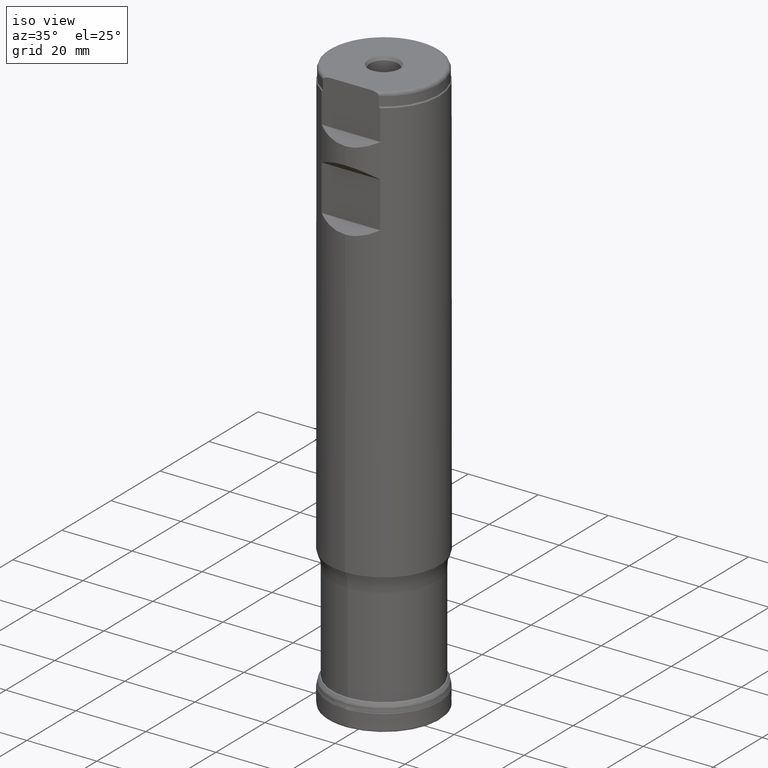
[diagram: clean part render]
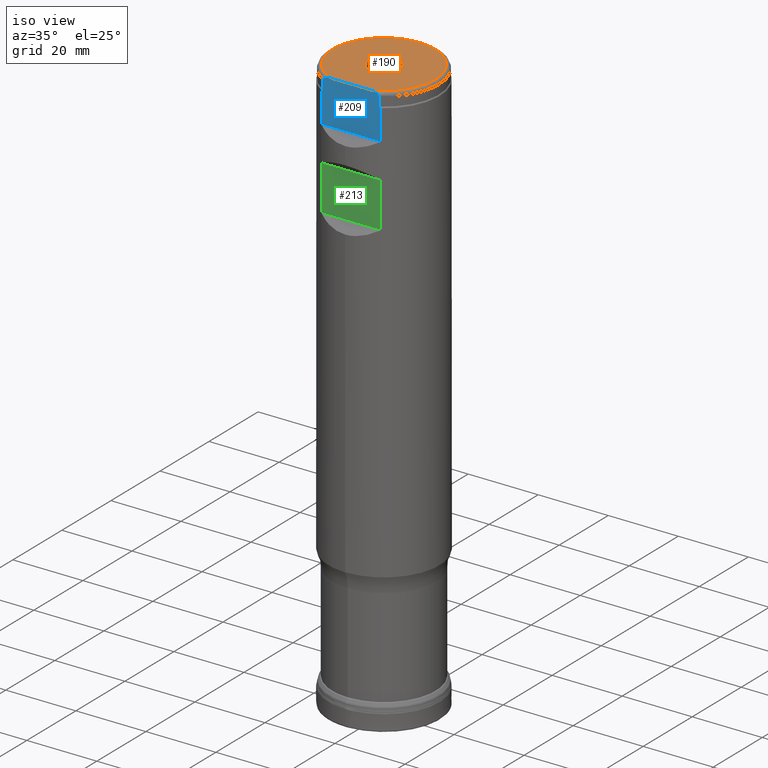
[diagram: same view with three faces highlighted in distinct colors, each labeled with its STEP entity id]
A machine part, iso view with three faces highlighted in distinct colors.
Their STEP definitions:

[orange] entity #190 — the highlighted planar face has unit normal (0, 0, 1).
#161=PLANE('',#823);
#190=ADVANCED_FACE('',(#291,#292),#161,.T.);
#250=CIRCLE('',#821,4.5);
#251=CIRCLE('',#822,14.675);
#291=FACE_BOUND('',#374,.T.);
#292=FACE_BOUND('',#375,.T.);
#374=EDGE_LOOP('',(#523));
#375=EDGE_LOOP('',(#524,#525));
#465=LINE('',#1402,#484);
#484=VECTOR('',#918,1.);
#523=ORIENTED_EDGE('',*,*,#717,.T.);
#524=ORIENTED_EDGE('',*,*,#718,.T.);
#525=ORIENTED_EDGE('',*,*,#719,.T.);
#655=VERTEX_POINT('',#1398);
#656=VERTEX_POINT('',#1400);
#657=VERTEX_POINT('',#1401);
#717=EDGE_CURVE('',#655,#655,#250,.T.);
#718=EDGE_CURVE('',#656,#657,#251,.T.);
#719=EDGE_CURVE('',#657,#656,#465,.T.);
#821=AXIS2_PLACEMENT_3D('',#1397,#914,#915);
#822=AXIS2_PLACEMENT_3D('',#1399,#916,#917);
#823=AXIS2_PLACEMENT_3D('',#1403,#919,#920);
#914=DIRECTION('',(0.,-1.17145536458252E-15,-1.));
#915=DIRECTION('',(0.,-1.,0.));
#916=DIRECTION('',(0.,1.17145536458252E-15,1.));
#917=DIRECTION('',(0.,-1.,1.8913509789185E-15));
#918=DIRECTION('',(1.,-1.37230767120917E-30,-1.17145536458252E-15));
#919=DIRECTION('',(0.,1.17145536458252E-15,1.));
#920=DIRECTION('',(0.,-1.,1.16573417585641E-15));
#1397=CARTESIAN_POINT('',(0.,1.93407280692575E-13,165.1));
#1398=CARTESIAN_POINT('',(0.,-4.49999999999981,165.1));
#1399=CARTESIAN_POINT('',(0.,1.93407280692575E-13,165.1));
#1400=CARTESIAN_POINT('',(5.78322282468843,-13.4873999999998,165.1));
#1401=CARTESIAN_POINT('',(-5.78322282468864,-13.4873999999998,165.1));
#1402=CARTESIAN_POINT('',(-17.5,-13.4873999999998,165.1));
#1403=CARTESIAN_POINT('',(0.,1.93407280692575E-13,165.1));

[blue] entity #209 — the highlighted planar face has unit normal (0, -1, 0).
#164=PLANE('',#857);
#179=FACE_OUTER_BOUND('',#409,.T.);
#209=ADVANCED_FACE('',(#179),#164,.T.);
#409=EDGE_LOOP('',(#562,#563,#564,#565,#566,#567,#568,#569,#570,#571));
#461=LINE('',#1357,#480);
#462=LINE('',#1361,#481);
#463=LINE('',#1394,#482);
#464=LINE('',#1395,#483);
#465=LINE('',#1402,#484);
#466=LINE('',#1470,#485);
#480=VECTOR('',#896,1.);
#481=VECTOR('',#899,1.);
#482=VECTOR('',#910,1.);
#483=VECTOR('',#911,1.);
#484=VECTOR('',#918,1.);
#485=VECTOR('',#987,1.);
#562=ORIENTED_EDGE('',*,*,#737,.T.);
#563=ORIENTED_EDGE('',*,*,#708,.F.);
#564=ORIENTED_EDGE('',*,*,#713,.F.);
#565=ORIENTED_EDGE('',*,*,#715,.F.);
#566=ORIENTED_EDGE('',*,*,#721,.F.);
#567=ORIENTED_EDGE('',*,*,#719,.F.);
#568=ORIENTED_EDGE('',*,*,#720,.F.);
#569=ORIENTED_EDGE('',*,*,#716,.F.);
#570=ORIENTED_EDGE('',*,*,#711,.F.);
#571=ORIENTED_EDGE('',*,*,#706,.F.);
#645=VERTEX_POINT('',#1355);
#647=VERTEX_POINT('',#1358);
#648=VERTEX_POINT('',#1360);
#649=VERTEX_POINT('',#1362);
#651=VERTEX_POINT('',#1383);
#652=VERTEX_POINT('',#1385);
#653=VERTEX_POINT('',#1392);
#654=VERTEX_POINT('',#1393);
#656=VERTEX_POINT('',#1400);
#657=VERTEX_POINT('',#1401);
#706=EDGE_CURVE('',#645,#647,#461,.T.);
#708=EDGE_CURVE('',#648,#649,#462,.T.);
#711=EDGE_CURVE('',#647,#651,#791,.T.);
#713=EDGE_CURVE('',#652,#648,#792,.T.);
#715=EDGE_CURVE('',#654,#652,#463,.T.);
#716=EDGE_CURVE('',#651,#653,#464,.T.);
#719=EDGE_CURVE('',#657,#656,#465,.T.);
#720=EDGE_CURVE('',#653,#657,#793,.T.);
#721=EDGE_CURVE('',#656,#654,#794,.T.);
#737=EDGE_CURVE('',#645,#649,#466,.T.);
#791=B_SPLINE_CURVE_WITH_KNOTS('',3,(#1379,#1380,#1381,#1382),
 .UNSPECIFIED.,.F.,.F.,(4,4),(0.,1.),.UNSPECIFIED.);
#792=B_SPLINE_CURVE_WITH_KNOTS('',3,(#1386,#1387,#1388,#1389),
 .UNSPECIFIED.,.F.,.F.,(4,4),(0.,1.),.UNSPECIFIED.);
#793=B_SPLINE_CURVE_WITH_KNOTS('',3,(#1404,#1405,#1406,#1407,#1408,#1409,
#1410,#1411),.UNSPECIFIED.,.F.,.F.,(4,2,2,4),(0.,0.249999999999999,0.499999999999999,
1.),.UNSPECIFIED.);
#794=B_SPLINE_CURVE_WITH_KNOTS('',3,(#1412,#1413,#1414,#1415,#1416,#1417,
#1418,#1419),.UNSPECIFIED.,.F.,.F.,(4,2,2,4),(0.,0.5,0.75,1.),
 .UNSPECIFIED.);
#857=AXIS2_PLACEMENT_3D('',#1471,#988,#989);
#896=DIRECTION('',(0.,1.17145536458252E-15,1.));
#899=DIRECTION('',(0.,-1.17145536458252E-15,-1.));
#910=DIRECTION('',(0.,-1.17145536458252E-15,-1.));
#911=DIRECTION('',(0.,1.17145536458252E-15,1.));
#918=DIRECTION('',(1.,-1.37230767120917E-30,-1.17145536458252E-15));
#987=DIRECTION('',(1.,-1.37230767120917E-30,-1.17145536458252E-15));
#988=DIRECTION('',(0.,-1.,1.17145536458252E-15));
#989=DIRECTION('',(1.17267306976032E-15,1.17093834628434E-15,1.));
#1355=CARTESIAN_POINT('',(-8.37291264972948,-13.4873999999998,152.524264068712));
#1357=CARTESIAN_POINT('',(-8.37291264972948,-13.4874,1.57998870842703E-14));
#1358=CARTESIAN_POINT('',(-8.37291264972948,-13.4873999999998,161.1));
#1360=CARTESIAN_POINT('',(8.37291264972948,-13.4873999999998,161.1));
#1361=CARTESIAN_POINT('',(8.37291264972948,-13.4874,1.57998870842703E-14));
#1362=CARTESIAN_POINT('',(8.37291264972948,-13.4873999999998,152.524264068712));
#1379=CARTESIAN_POINT('',(-8.37291264972947,-13.4873999999998,161.1));
#1380=CARTESIAN_POINT('',(-8.24537216173961,-13.4873999999998,161.216512233654));
#1381=CARTESIAN_POINT('',(-8.11683755434122,-13.4873999999998,161.332012782716));
#1382=CARTESIAN_POINT('',(-7.98721893026601,-13.4873999999998,161.446410161514));
#1383=CARTESIAN_POINT('',(-7.98721893026602,-13.4873999999998,161.446410161514));
#1385=CARTESIAN_POINT('',(7.98721893026602,-13.4873999999998,161.446410161514));
#1386=CARTESIAN_POINT('',(7.98721893026603,-13.4873999999998,161.446410161514));
#1387=CARTESIAN_POINT('',(8.11685003072467,-13.4873999999998,161.332001771447));
#1388=CARTESIAN_POINT('',(8.24538408682384,-13.4873999999998,161.216501339716));
#1389=CARTESIAN_POINT('',(8.37291264972948,-13.4873999999998,161.1));
#1392=CARTESIAN_POINT('',(-7.9872189302887,-13.4873999999998,164.099999999989));
#1393=CARTESIAN_POINT('',(7.98721893026602,-13.4873999999998,164.1));
#1394=CARTESIAN_POINT('',(7.98721893026602,-13.4874,1.57998870842703E-14));
#1395=CARTESIAN_POINT('',(-7.98721893026602,-13.4874,1.57998870842703E-14));
#1400=CARTESIAN_POINT('',(5.78322282468843,-13.4873999999998,165.1));
#1401=CARTESIAN_POINT('',(-5.78322282468864,-13.4873999999998,165.1));
#1402=CARTESIAN_POINT('',(-17.5,-13.4873999999998,165.1));
#1404=CARTESIAN_POINT('',(-7.98721893026687,-13.4873999999998,164.099999999988));
#1405=CARTESIAN_POINT('',(-7.98721893027205,-13.4873999999998,164.32020277002));
#1406=CARTESIAN_POINT('',(-7.83736774434983,-13.4873999999998,164.515154682752));
#1407=CARTESIAN_POINT('',(-7.48623082979299,-13.4873999999998,164.780139720299));
#1408=CARTESIAN_POINT('',(-7.28172032421563,-13.4873999999998,164.867554950671));
#1409=CARTESIAN_POINT('',(-6.65729293981299,-13.4873999999998,165.0609297127));
#1410=CARTESIAN_POINT('',(-6.21637245039726,-13.4873999999998,165.1));
#1411=CARTESIAN_POINT('',(-5.78322282468864,-13.4873999999998,165.1));
#1412=CARTESIAN_POINT('',(5.78322282468843,-13.4873999999998,165.1));
#1413=CARTESIAN_POINT('',(6.21394869343174,-13.4873999999998,165.1));
#1414=CARTESIAN_POINT('',(6.65580566004194,-13.4873999999998,165.061664403719));
#1415=CARTESIAN_POINT('',(7.28486381477454,-13.4873999999998,164.86644362587));
#1416=CARTESIAN_POINT('',(7.48748729423044,-13.4873999999998,164.779507582041));
#1417=CARTESIAN_POINT('',(7.83842269980531,-13.4873999999998,164.514040424023));
#1418=CARTESIAN_POINT('',(7.98721893026602,-13.4873999999998,164.322383261353));
#1419=CARTESIAN_POINT('',(7.98721893026602,-13.4873999999998,164.1));
#1470=CARTESIAN_POINT('',(-17.5,-13.4873999999998,152.524264068712));
#1471=CARTESIAN_POINT('',(-17.5,-13.4873999999998,165.1));

[green] entity #213 — the highlighted planar face has unit normal (0, -1, 0).
#167=PLANE('',#861);
#183=FACE_OUTER_BOUND('',#413,.T.);
#213=ADVANCED_FACE('',(#183),#167,.T.);
#413=EDGE_LOOP('',(#580,#581,#582,#583));
#459=LINE('',#1307,#478);
#460=LINE('',#1339,#479);
#469=LINE('',#1477,#488);
#470=LINE('',#1478,#489);
#478=VECTOR('',#890,1.);
#479=VECTOR('',#893,1.);
#488=VECTOR('',#998,1.);
#489=VECTOR('',#999,1.);
#580=ORIENTED_EDGE('',*,*,#740,.T.);
#581=ORIENTED_EDGE('',*,*,#703,.F.);
#582=ORIENTED_EDGE('',*,*,#741,.T.);
#583=ORIENTED_EDGE('',*,*,#699,.F.);
#637=VERTEX_POINT('',#1290);
#639=VERTEX_POINT('',#1306);
#640=VERTEX_POINT('',#1308);
#643=VERTEX_POINT('',#1338);
#699=EDGE_CURVE('',#639,#640,#459,.T.);
#703=EDGE_CURVE('',#643,#637,#460,.T.);
#740=EDGE_CURVE('',#639,#637,#469,.T.);
#741=EDGE_CURVE('',#643,#640,#470,.T.);
#861=AXIS2_PLACEMENT_3D('',#1479,#1000,#1001);
#890=DIRECTION('',(0.,-1.17145536458252E-15,-1.));
#893=DIRECTION('',(0.,1.17145536458252E-15,1.));
#998=DIRECTION('',(-1.,1.37230767120917E-30,1.17145536458252E-15));
#999=DIRECTION('',(1.,-1.37230767120917E-30,-1.17145536458252E-15));
#1000=DIRECTION('',(0.,-1.,1.17145536458252E-15));
#1001=DIRECTION('',(1.17267306976032E-15,1.17093834628434E-15,1.));
#1290=CARTESIAN_POINT('',(-8.37291264972948,-13.4873999999998,142.557060931288));
#1306=CARTESIAN_POINT('',(8.37291264972948,-13.4873999999998,142.557060931288));
#1307=CARTESIAN_POINT('',(8.37291264972948,-13.4874,1.57998870842703E-14));
#1308=CARTESIAN_POINT('',(8.37291264972948,-13.4873999999998,129.699189068712));
#1338=CARTESIAN_POINT('',(-8.37291264972948,-13.4873999999998,129.699189068712));
#1339=CARTESIAN_POINT('',(-8.37291264972948,-13.4874,1.57998870842703E-14));
#1477=CARTESIAN_POINT('',(-17.5,-13.4873999999998,142.557060931288));
#1478=CARTESIAN_POINT('',(-17.5,-13.4873999999998,129.699189068712));
#1479=CARTESIAN_POINT('',(-17.5,-13.4873999999998,142.681325));